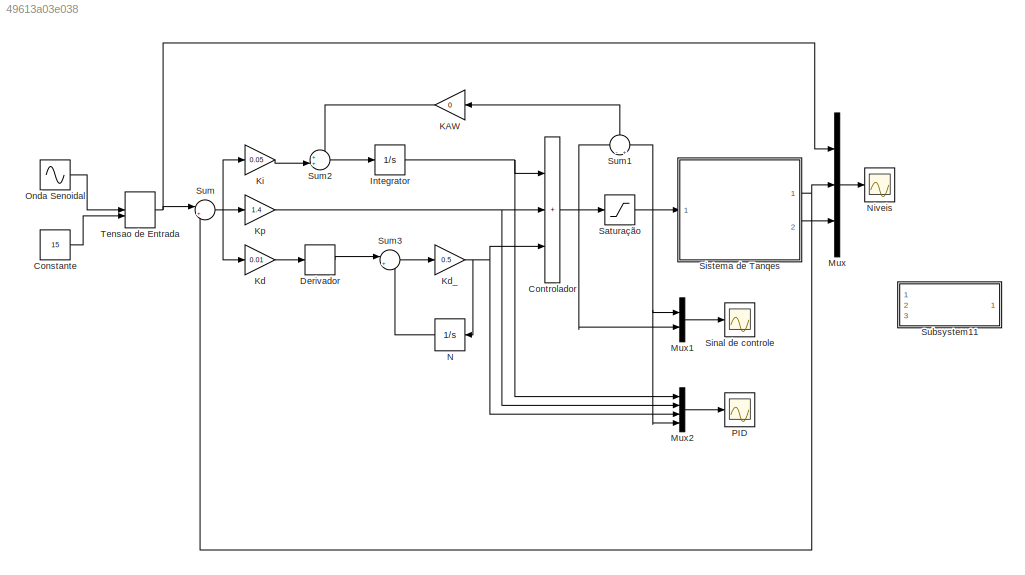
MODEL slx_49613a03e038
KIND model
CONFIG AbsTol = auto
CONFIG EnableMultiTasking = on
CONFIG FixedStep = 0.1
CONFIG MaxStep = 5e-1
CONFIG MinStep = auto
CONFIG RelTol = 1e-3
CONFIG SampleTimeConstraint = Unconstrained
CONFIG Solver = ode45
CONFIG SolverName = ode45
CONFIG StartTime = 0.0
CONFIG StopTime = 240
BLOCK [Constant] Constante
  Value = 15
BLOCK [Sum] Controlador
  IconShape = rectangular
  Inputs = +++
  Ports = [3, 1]
BLOCK [Derivative] Derivador
BLOCK [Integrator] Integrator
  Ports = [1, 1]
BLOCK [Gain] KAW
  Gain = 0
  NameLocation = top
BLOCK [Gain] Kd
  Gain = 0.01
BLOCK [Gain] Kd_
  Gain = 0.5
BLOCK [Gain] Ki
  Gain = 0.05
BLOCK [Gain] Kp
  Gain = 1.4
BLOCK [Mux] Mux
  DisplayOption = bar
  Inputs = 3
  Ports = [3, 1]
BLOCK [Mux] Mux1
  DisplayOption = bar
  Inputs = 2
  Ports = [2, 1]
BLOCK [Mux] Mux2
  DisplayOption = bar
  Ports = [4, 1]
BLOCK [Integrator] N
  NameLocation = top
  Ports = [1, 1]
BLOCK [Scope] Niveis
  Floating = off
  NumInputPorts = 1
  Ports = [1]
  ScopeSpecificationString = Simulink.scopes.TimeScopeBlockCfg('CurrentConfiguration', extmgr.ConfigurationSet(extmgr.Configuration('Core','General UI',true,'FigureColor',[0.941176470588235 0.941176470588235 0.941176470588235]),extmgr.Configuration('Core','Source UI',true),extmgr.Configuration('Sources','WiredSimulink',true,'DataLogging',true,'DataLoggingVariableName','Niveis','DataLoggingMaxPoints','500000','DataLoggingLimit...<+2881ch>
BLOCK [Sin] Onda Senoidal
  Amplitude = 2
  Bias = 14
  Frequency = 0.2
  Ports = [0, 1]
  SampleTime = 0
BLOCK [Scope] PID
  Floating = off
  NumInputPorts = 1
  Ports = [1]
  ScopeSpecificationString = Simulink.scopes.TimeScopeBlockCfg('CurrentConfiguration', extmgr.ConfigurationSet(extmgr.Configuration('Core','General UI',true,'FigureColor',[0.941176470588235 0.941176470588235 0.941176470588235]),extmgr.Configuration('Core','Source UI',true),extmgr.Configuration('Sources','WiredSimulink',true,'DataLogging',true,'DataLoggingVariableName','S_Controle1','DataLoggingMaxPoints','500000','DataLogging...<+2883ch>
BLOCK [Saturate] Saturação
  LowerLimit = -4
  UpperLimit = 4
BLOCK [Scope] Sinal de controle
  Floating = off
  NumInputPorts = 1
  Ports = [1]
  ScopeSpecificationString = Simulink.scopes.TimeScopeBlockCfg('CurrentConfiguration', extmgr.ConfigurationSet(extmgr.Configuration('Core','General UI',true,'FigureColor',[0.941176470588235 0.941176470588235 0.941176470588235]),extmgr.Configuration('Core','Source UI',true),extmgr.Configuration('Sources','WiredSimulink',true,'DataLogging',true,'DataLoggingVariableName','S_Controle','DataLoggingMaxPoints','500000','DataLoggingL...<+2882ch>
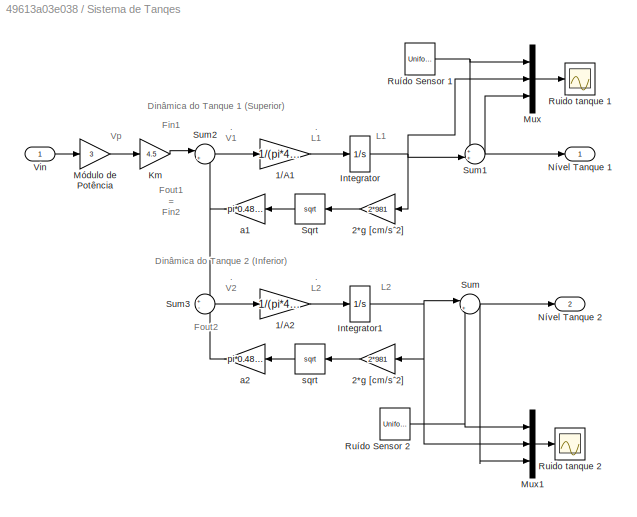
BLOCK [SubSystem] Sistema de Tanqes 
  Ports = [1, 2]
  RequestExecContextInheritance = off
BLOCK [Gain] Sistema de Tanqes /1//A1
  Gain = 1/(pi*4.45^2/4)
BLOCK [Gain] Sistema de Tanqes /1//A2
  Gain = 1/(pi*4.45^2/4)
BLOCK [Gain] Sistema de Tanqes /2*g  [cm//sˆ2]
  Gain = 2*981
BLOCK [Gain] Sistema de Tanqes /2*g [cm//sˆ2]
  Gain = 2*981
BLOCK [Integrator] Sistema de Tanqes /Integrator
  LowerSaturationLimit = -2
  Ports = [1, 1]
  UpperSaturationLimit = 35
BLOCK [Integrator] Sistema de Tanqes /Integrator1
  LowerSaturationLimit = -2
  Ports = [1, 1]
  UpperSaturationLimit = 35
BLOCK [Gain] Sistema de Tanqes /Km
  Gain = 4.5
BLOCK [Mux] Sistema de Tanqes /Mux
  DisplayOption = bar
  Inputs = 3
  Ports = [3, 1]
BLOCK [Mux] Sistema de Tanqes /Mux1
  DisplayOption = bar
  Inputs = 3
  Ports = [3, 1]
BLOCK [Gain] Sistema de Tanqes /Módulo de Potência
  Gain = 3
BLOCK [Outport] Sistema de Tanqes /Nível Tanque 1
BLOCK [Outport] Sistema de Tanqes /Nível Tanque 2
  Port = 2
BLOCK [Scope] Sistema de Tanqes /Ruido tanque 1
  Floating = off
  NumInputPorts = 1
  Ports = [1]
  ScopeSpecificationString = C++SS(StrPVP('Location','[363, 254, 1361, 709]'),StrPVP('Open','off'),MxPVP('AxesTitles',54,'struct(''axes1'',''%<SignalLabel>'')'),MxPVP('ScopeGraphics',57,'struct(''FigureColor'',''[0.5 0.5 0.5]'',''AxesColor'',''[0 0 0]'',''AxesTickColor'',''[1 1 1]'',''LineColors'',''[1 1 0;1 0 1;0 1 1;1 0 0;0 1 0;0 0 1]'',''LineStyles'',''-|-|-|-|-|-'',''LineWidths'',''[0.5 0.5 0.5 0.5 0.5 0.5]'',''MarkerStyl...<+261ch>
BLOCK [Scope] Sistema de Tanqes /Ruido tanque 2
  Floating = off
  NumInputPorts = 1
  Ports = [1]
  ScopeSpecificationString = C++SS(StrPVP('Location','[363, 254, 1361, 709]'),StrPVP('Open','off'),MxPVP('AxesTitles',54,'struct(''axes1'',''%<SignalLabel>'')'),MxPVP('ScopeGraphics',57,'struct(''FigureColor'',''[0.5 0.5 0.5]'',''AxesColor'',''[0 0 0]'',''AxesTickColor'',''[1 1 1]'',''LineColors'',''[1 1 0;1 0 1;0 1 1;1 0 0;0 1 0;0 0 1]'',''LineStyles'',''-|-|-|-|-|-'',''LineWidths'',''[0.5 0.5 0.5 0.5 0.5 0.5]'',''MarkerStyl...<+261ch>
BLOCK [UniformRandomNumber] Sistema de Tanqes /Ruído Sensor 1
  Maximum = 0.0001
  Minimum = -0.0001
  SampleTime = 0.0001
  Seed = round(rand(1)*100)
BLOCK [UniformRandomNumber] Sistema de Tanqes /Ruído Sensor 2
  Maximum = 0.0001
  Minimum = -0.0001
  SampleTime = 0.01
  Seed = round(rand(1)*100)
BLOCK [Sqrt] Sistema de Tanqes /Sqrt
BLOCK [Sum] Sistema de Tanqes /Sum
  Inputs = |++
  Ports = [2, 1]
BLOCK [Sum] Sistema de Tanqes /Sum1
  Inputs = ++|
  Ports = [2, 1]
BLOCK [Sum] Sistema de Tanqes /Sum2
  Inputs = |+-
  Ports = [2, 1]
BLOCK [Sum] Sistema de Tanqes /Sum3
  Inputs = +-
  Ports = [2, 1]
BLOCK [Inport] Sistema de Tanqes /Vin
BLOCK [Gain] Sistema de Tanqes /a1
  Gain = pi*0.48^2/4
BLOCK [Gain] Sistema de Tanqes /a2
  Gain = pi*0.48^2/4
BLOCK [Sqrt] Sistema de Tanqes /sqrt
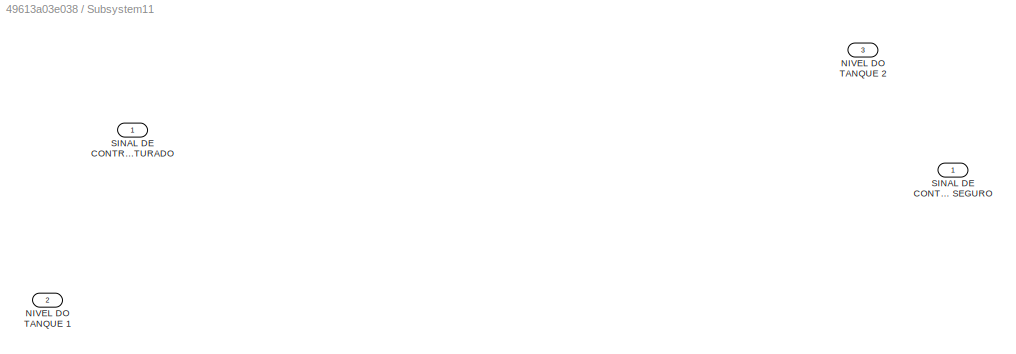
BLOCK [SubSystem] Subsystem11
  Ports = [3, 1]
  RequestExecContextInheritance = off
BLOCK [Inport] Subsystem11/NIVEL DO TANQUE 1
  Port = 2
BLOCK [Inport] Subsystem11/NIVEL DO TANQUE 2
  Port = 3
BLOCK [Inport] Subsystem11/SINAL DE CONTROLE NÃO SATURADO
BLOCK [Outport] Subsystem11/SINAL DE CONTROLE SEGURO
BLOCK [Sum] Sum
  Inputs = |+-
  Ports = [2, 1]
BLOCK [Sum] Sum1
  Inputs = -|+
  NameLocation = right
  Ports = [2, 1]
BLOCK [Sum] Sum2
  Inputs = ++|
  Ports = [2, 1]
BLOCK [Sum] Sum3
  Inputs = |+-
  Ports = [2, 1]
BLOCK [ManualSwitch] Tensao de Entrada
  CurrentSetting = 0
ANNOTATION Sistema de Tanqes : . L1
ANNOTATION Sistema de Tanqes : . L2
ANNOTATION Sistema de Tanqes : . V1
ANNOTATION Sistema de Tanqes : . V2
ANNOTATION Sistema de Tanqes : Fout1 = Fin2
ANNOTATION Sistema de Tanqes : Fout2
ANNOTATION Sistema de Tanqes : Dinâmica do Tanque 1 (Superior)
ANNOTATION Sistema de Tanqes : Dinâmica do Tanque 2 (Inferior)
ANNOTATION Sistema de Tanqes : Fin1
ANNOTATION Sistema de Tanqes : L1
ANNOTATION Sistema de Tanqes : L2
ANNOTATION Sistema de Tanqes : Vp
LINE Constante:1 -> Tensao de Entrada:2
NET Controlador:1 -> Mux1:2, Saturação:1, Sum1:1
LINE Derivador:1 -> Sum3:1
NET Integrator:1 -> Controlador:1, Mux2:1
LINE KAW:1 -> Sum2:1
LINE Kd:1 -> Derivador:1
NET Kd_:1 -> Controlador:3, Mux2:3, N:1
LINE Ki:1 -> Sum2:2
NET Kp:1 -> Controlador:2, Mux2:2
LINE Mux1:1 -> Sinal de controle:1
LINE Mux2:1 -> PID:1
LINE Mux:1 -> Niveis:1
LINE N:1 -> Sum3:2
LINE Onda Senoidal:1 -> Tensao de Entrada:1
NET Saturação:1 -> Mux1:1, Mux2:4, Sistema de Tanqes :1, Sum1:2
LINE Sistema de Tanqes /1//A1:1 -> Sistema de Tanqes /Integrator:1
LINE Sistema de Tanqes /1//A2:1 -> Sistema de Tanqes /Integrator1:1
LINE Sistema de Tanqes /2*g  [cm//sˆ2]:1 -> Sistema de Tanqes /sqrt:1
LINE Sistema de Tanqes /2*g [cm//sˆ2]:1 -> Sistema de Tanqes /Sqrt:1
NET Sistema de Tanqes /Integrator1:1 -> Sistema de Tanqes /2*g  [cm//sˆ2]:1, Sistema de Tanqes /Mux1:2, Sistema de Tanqes /Sum:1
NET Sistema de Tanqes /Integrator:1 -> Sistema de Tanqes /2*g [cm//sˆ2]:1, Sistema de Tanqes /Mux:2, Sistema de Tanqes /Sum1:2
LINE Sistema de Tanqes /Km:1 -> Sistema de Tanqes /Sum2:1
LINE Sistema de Tanqes /Mux1:1 -> Sistema de Tanqes /Ruido tanque 2:1
LINE Sistema de Tanqes /Mux:1 -> Sistema de Tanqes /Ruido tanque 1:1
LINE Sistema de Tanqes /Módulo de Potência:1 -> Sistema de Tanqes /Km:1
NET Sistema de Tanqes /Ruído Sensor 1:1 -> Sistema de Tanqes /Mux:1, Sistema de Tanqes /Sum1:1
NET Sistema de Tanqes /Ruído Sensor 2:1 -> Sistema de Tanqes /Mux1:1, Sistema de Tanqes /Sum:2
LINE Sistema de Tanqes /Sqrt:1 -> Sistema de Tanqes /a1:1
NET Sistema de Tanqes /Sum1:1 -> Sistema de Tanqes /Mux:3, Sistema de Tanqes /Nível Tanque 1:1
LINE Sistema de Tanqes /Sum2:1 -> Sistema de Tanqes /1//A1:1
LINE Sistema de Tanqes /Sum3:1 -> Sistema de Tanqes /1//A2:1
NET Sistema de Tanqes /Sum:1 -> Sistema de Tanqes /Mux1:3, Sistema de Tanqes /Nível Tanque 2:1
LINE Sistema de Tanqes /Vin:1 -> Sistema de Tanqes /Módulo de Potência:1
NET Sistema de Tanqes /a1:1 -> Sistema de Tanqes /Sum2:2, Sistema de Tanqes /Sum3:1
LINE Sistema de Tanqes /a2:1 -> Sistema de Tanqes /Sum3:2
LINE Sistema de Tanqes /sqrt:1 -> Sistema de Tanqes /a2:1
NET Sistema de Tanqes :1 -> Mux:2, Sum:2
LINE Sistema de Tanqes :2 -> Mux:3
LINE Sum1:1 -> KAW:1
LINE Sum2:1 -> Integrator:1
LINE Sum3:1 -> Kd_:1
NET Sum:1 -> Kd:1, Ki:1, Kp:1
NET Tensao de Entrada:1 -> Mux:1, Sum:1
note: NET lines group one-source signal fan-out (src -> all destinations, sorted); 1:1 wires keep LINE
